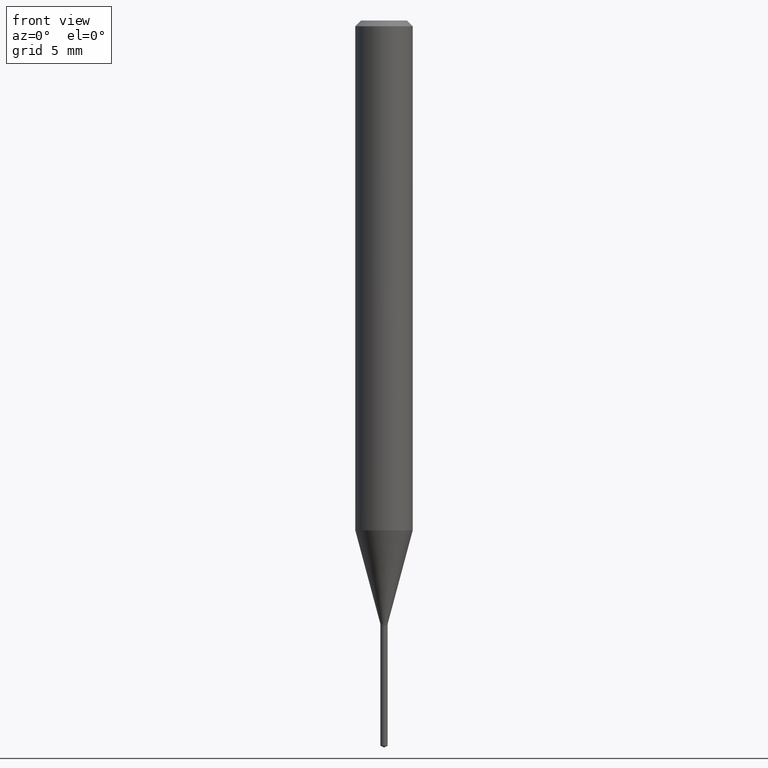
[diagram: clean part render]
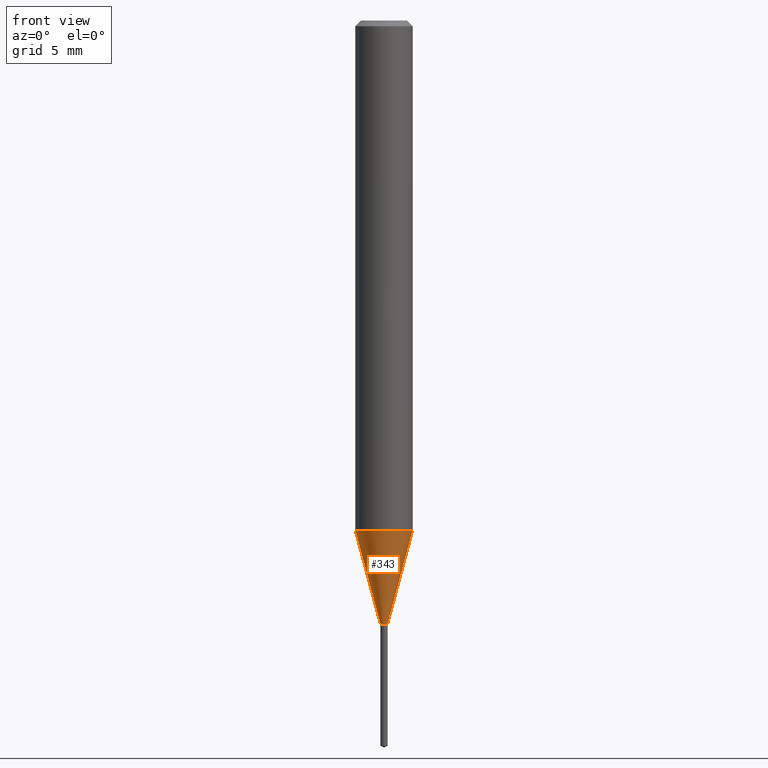
[diagram: same view with one face highlighted and labeled with its STEP entity id]
A machine part, front view. The second image highlights one B-rep face of the part: STEP entity #343.
In plain terms, the highlighted conical surface has half-angle 15 deg.
Its self-contained STEP definition (entity closure, byte-faithful):
#10 = VECTOR ( 'NONE', #112, 39.37007874015748854 ) ;
#18 = VECTOR ( 'NONE', #239, 39.37007874015748854 ) ;
#25 = EDGE_CURVE ( 'NONE', #338, #178, #115, .T. ) ;
#36 = ORIENTED_EDGE ( 'NONE', *, *, #234, .F. ) ;
#68 = EDGE_LOOP ( 'NONE', ( #36, #421, #134, #144 ) ) ;
#93 = CARTESIAN_POINT ( 'NONE',  ( 0.05905000000000011628, -4.076349087267857001E-15, -1.049412780869824147 ) ) ;
#94 = EDGE_CURVE ( 'NONE', #284, #338, #447, .T. ) ;
#112 = DIRECTION ( 'NONE',  ( 0.2588190451025212391, 1.565188264969622362E-15, 0.9659258262890679791 ) ) ;
#115 = LINE ( 'NONE', #410, #10 ) ;
#127 = LINE ( 'NONE', #425, #18 ) ;
#134 = ORIENTED_EDGE ( 'NONE', *, *, #25, .T. ) ;
#144 = ORIENTED_EDGE ( 'NONE', *, *, #390, .F. ) ;
#148 = CARTESIAN_POINT ( 'NONE',  ( 2.566306220429153348E-29, -3.664005141150482080E-15, -1.049412780869824147 ) ) ;
#149 = CIRCLE ( 'NONE', #299, 0.05905000000000011628 ) ;
#163 = CONICAL_SURFACE ( 'NONE', #439, 0.007499999999999997120, 0.2617993877991499629 ) ;
#178 = VERTEX_POINT ( 'NONE', #93 ) ;
#184 = CARTESIAN_POINT ( 'NONE',  ( 3.036783163520702277E-29, -4.335721526575417446E-15, -1.241799999999999793 ) ) ;
#205 = DIRECTION ( 'NONE',  ( 1.000000000000000000, -6.982962677686205968E-15, 0.000000000000000000 ) ) ;
#219 = CARTESIAN_POINT ( 'NONE',  ( -0.007499999999999997120, -4.285573154598369775E-15, -1.241799999999999793 ) ) ;
#234 = EDGE_CURVE ( 'NONE', #284, #252, #127, .T. ) ;
#239 = DIRECTION ( 'NONE',  ( -0.2588190451025212391, 5.211531920934549464E-15, 0.9659258262890679791 ) ) ;
#252 = VERTEX_POINT ( 'NONE', #490 ) ;
#253 = FACE_OUTER_BOUND ( 'NONE', #68, .T. ) ;
#255 = DIRECTION ( 'NONE',  ( -2.445468806185136597E-29, 3.491481338843145583E-15, 1.000000000000000000 ) ) ;
#262 = DIRECTION ( 'NONE',  ( 1.000000000000000000, -6.982962677686266711E-15, 0.000000000000000000 ) ) ;
#284 = VERTEX_POINT ( 'NONE', #219 ) ;
#299 = AXIS2_PLACEMENT_3D ( 'NONE', #148, #301, #262 ) ;
#301 = DIRECTION ( 'NONE',  ( -2.445468806185136597E-29, 3.491481338843145583E-15, 1.000000000000000000 ) ) ;
#327 = CARTESIAN_POINT ( 'NONE',  ( 3.036783163520702277E-29, -4.335721526575417446E-15, -1.241799999999999793 ) ) ;
#338 = VERTEX_POINT ( 'NONE', #484 ) ;
#343 = ADVANCED_FACE ( 'NONE', ( #253 ), #163, .T. ) ;
#390 = EDGE_CURVE ( 'NONE', #252, #178, #149, .T. ) ;
#400 = DIRECTION ( 'NONE',  ( 1.000000000000000000, -6.982962677686205968E-15, 0.000000000000000000 ) ) ;
#410 = CARTESIAN_POINT ( 'NONE',  ( 0.007499999999999997120, -4.388093746658064131E-15, -1.241799999999999793 ) ) ;
#421 = ORIENTED_EDGE ( 'NONE', *, *, #94, .T. ) ;
#425 = CARTESIAN_POINT ( 'NONE',  ( -0.007499999999999997120, -4.282430821393410279E-15, -1.241799999999999793 ) ) ;
#438 = DIRECTION ( 'NONE',  ( -2.445468806185136597E-29, 3.491481338843145583E-15, 1.000000000000000000 ) ) ;
#439 = AXIS2_PLACEMENT_3D ( 'NONE', #184, #255, #400 ) ;
#447 = CIRCLE ( 'NONE', #456, 0.007499999999999997120 ) ;
#456 = AXIS2_PLACEMENT_3D ( 'NONE', #327, #438, #205 ) ;
#484 = CARTESIAN_POINT ( 'NONE',  ( 0.007499999999999997120, -4.388093746658064131E-15, -1.241799999999999793 ) ) ;
#490 = CARTESIAN_POINT ( 'NONE',  ( -0.05905000000000011628, -3.244429655684142193E-15, -1.049412780869824147 ) ) ;